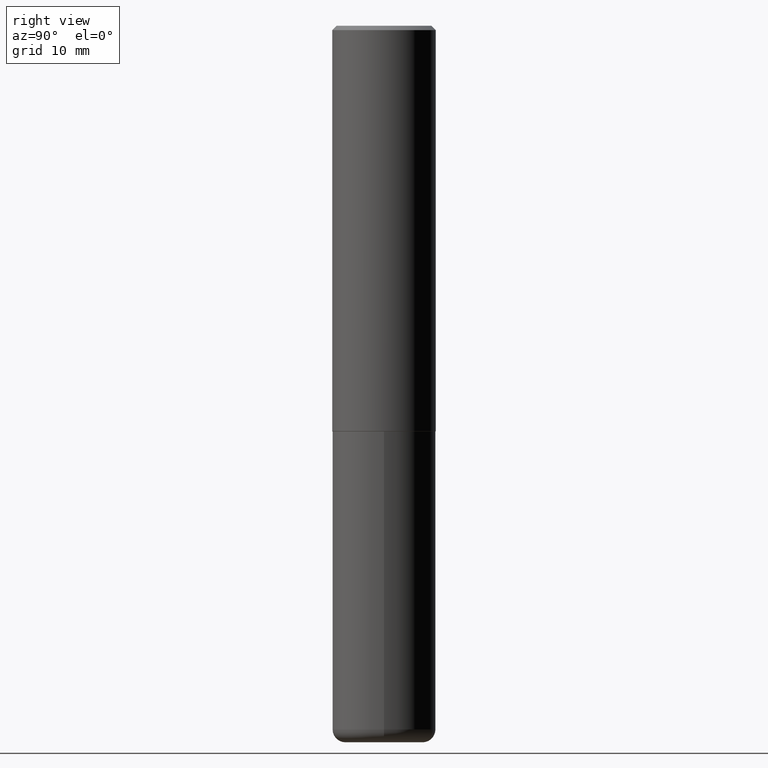
[diagram: clean part render]
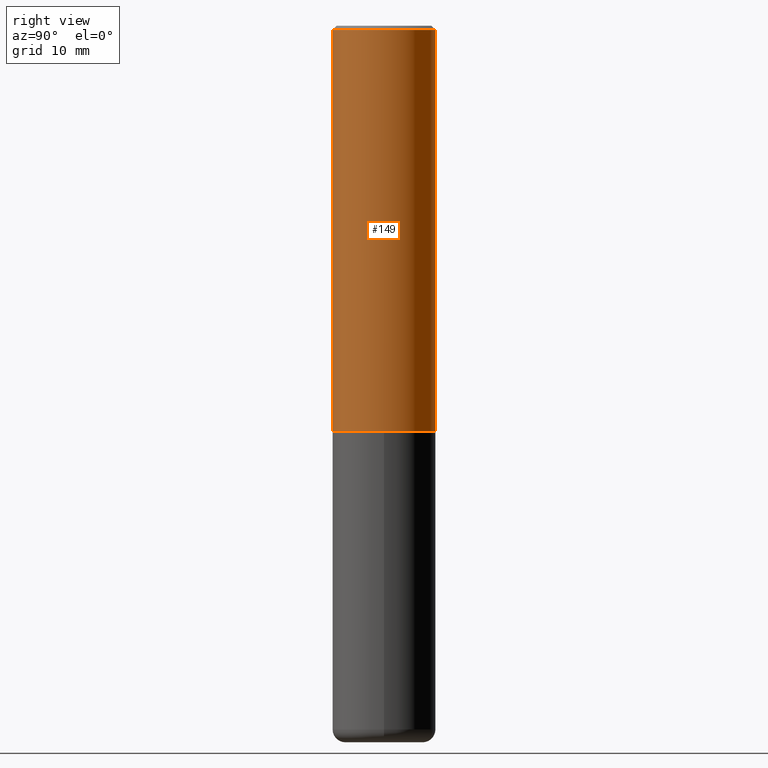
[diagram: same view with one face highlighted and labeled with its STEP entity id]
A machine part, right view. The second image highlights one B-rep face of the part: STEP entity #149.
In plain terms, the highlighted cylindrical surface (partial cylindrical patch) has radius 5.9995 mm, axis along (-0, 0, 1).
Its self-contained STEP definition (entity closure, byte-faithful):
#9 = LINE ( 'NONE', #72, #157 ) ;
#18 = DIRECTION ( 'NONE',  ( -2.445371925614294233E-29, 3.491620077334691546E-15, 1.000000000000000000 ) ) ;
#21 = CARTESIAN_POINT ( 'NONE',  ( 0.000000000000000000, 0.000000000000000000, 0.000000000000000000 ) ) ;
#29 = CIRCLE ( 'NONE', #408, 0.2362000000000002153 ) ;
#31 = VECTOR ( 'NONE', #97, 39.37007874015748143 ) ;
#44 = LINE ( 'NONE', #271, #31 ) ;
#50 = DIRECTION ( 'NONE',  ( -6.982962677686265133E-15, -1.000000000000000000, 3.469747663417773847E-15 ) ) ;
#53 = ORIENTED_EDGE ( 'NONE', *, *, #117, .T. ) ;
#72 = CARTESIAN_POINT ( 'NONE',  ( 1.678301941865357183E-15, 0.2362000000000001043, -8.247206622664545710E-16 ) ) ;
#77 = ORIENTED_EDGE ( 'NONE', *, *, #312, .F. ) ;
#84 = CARTESIAN_POINT ( 'NONE',  ( 1.678301941865380454E-15, 0.2361999999999937760, -1.849400000000001043 ) ) ;
#97 = DIRECTION ( 'NONE',  ( -2.445371925614294233E-29, 3.491620077334691546E-15, 1.000000000000000000 ) ) ;
#100 = DIRECTION ( 'NONE',  ( -6.982962677686265922E-15, -1.000000000000000000, 3.487819265831411744E-15 ) ) ;
#108 = EDGE_CURVE ( 'NONE', #302, #348, #44, .T. ) ;
#117 = EDGE_CURVE ( 'NONE', #331, #390, #9, .T. ) ;
#126 = ORIENTED_EDGE ( 'NONE', *, *, #338, .T. ) ;
#134 = CARTESIAN_POINT ( 'NONE',  ( 4.522470839231075964E-29, -6.457402171022779437E-15, -1.849400000000000155 ) ) ;
#140 = AXIS2_PLACEMENT_3D ( 'NONE', #21, #18, #207 ) ;
#149 = ADVANCED_FACE ( 'NONE', ( #372 ), #335, .T. ) ;
#157 = VECTOR ( 'NONE', #160, 39.37007874015748143 ) ;
#160 = DIRECTION ( 'NONE',  ( -2.445371925614294233E-29, 3.491620077334691546E-15, 1.000000000000000000 ) ) ;
#164 = CIRCLE ( 'NONE', #230, 0.2361999999999999933 ) ;
#168 = CARTESIAN_POINT ( 'NONE',  ( -1.620449627073635079E-15, -0.2362000000000000766, -0.01999999999999922673 ) ) ;
#207 = DIRECTION ( 'NONE',  ( -6.982962677686265922E-15, -1.000000000000000000, 3.491620077334691941E-15 ) ) ;
#230 = AXIS2_PLACEMENT_3D ( 'NONE', #328, #287, #100 ) ;
#271 = CARTESIAN_POINT ( 'NONE',  ( -1.649375784469496722E-15, -0.2362000000000001043, 8.247206622664545710E-16 ) ) ;
#287 = DIRECTION ( 'NONE',  ( -2.445371925614294233E-29, 3.491620077334691546E-15, 1.000000000000000000 ) ) ;
#302 = VERTEX_POINT ( 'NONE', #365 ) ;
#307 = ORIENTED_EDGE ( 'NONE', *, *, #108, .F. ) ;
#312 = EDGE_CURVE ( 'NONE', #348, #390, #164, .T. ) ;
#328 = CARTESIAN_POINT ( 'NONE',  ( 4.890743851228601113E-31, -6.983240154669400497E-17, -0.02000000000000005246 ) ) ;
#330 = DIRECTION ( 'NONE',  ( -2.445371925614294233E-29, 3.491620077334691546E-15, 1.000000000000000000 ) ) ;
#331 = VERTEX_POINT ( 'NONE', #84 ) ;
#335 = CYLINDRICAL_SURFACE ( 'NONE', #140, 0.2362000000000001043 ) ;
#338 = EDGE_CURVE ( 'NONE', #302, #331, #29, .T. ) ;
#347 = EDGE_LOOP ( 'NONE', ( #126, #53, #77, #307 ) ) ;
#348 = VERTEX_POINT ( 'NONE', #168 ) ;
#365 = CARTESIAN_POINT ( 'NONE',  ( -1.649375784469452349E-15, -0.2362000000000066546, -1.849399999999999489 ) ) ;
#367 = CARTESIAN_POINT ( 'NONE',  ( 1.649375784469496525E-15, 0.2361999999999999378, -0.02000000000000087472 ) ) ;
#372 = FACE_OUTER_BOUND ( 'NONE', #347, .T. ) ;
#390 = VERTEX_POINT ( 'NONE', #367 ) ;
#408 = AXIS2_PLACEMENT_3D ( 'NONE', #134, #330, #50 ) ;